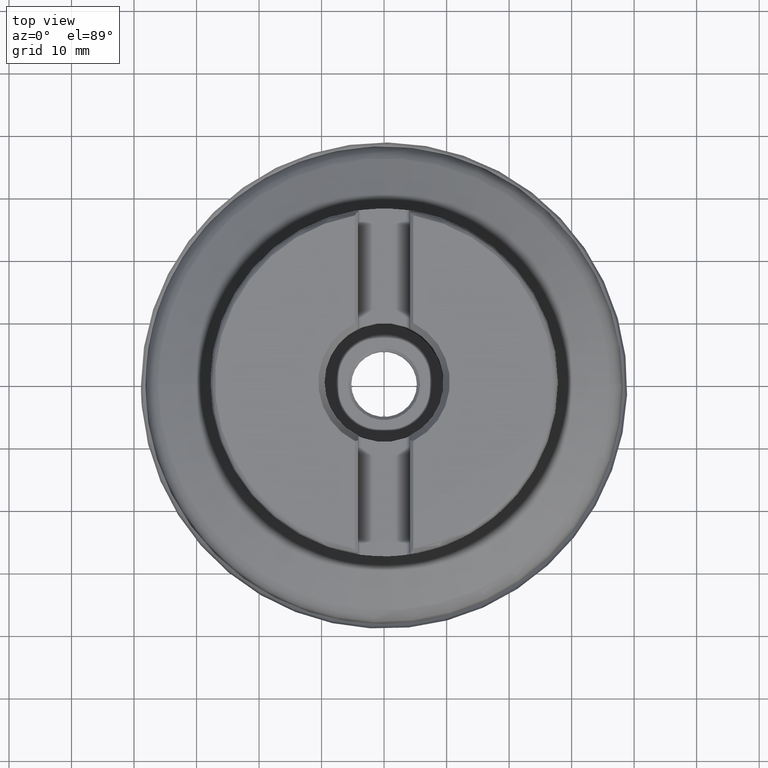
[diagram: clean part render]
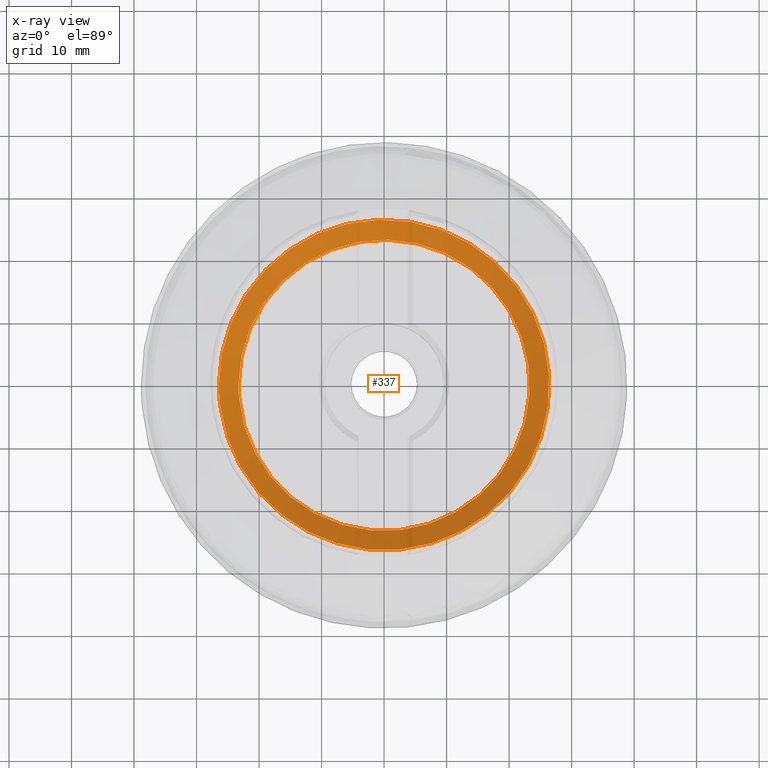
[diagram: x-ray — body ghosted, one internal face saturated and labeled with its STEP entity id]
A machine part, top view, then the same camera in x-ray: the body is ghosted and one INTERNAL B-rep face — a face not visible from any outside direction — is saturated and labeled: STEP entity #337.
In plain terms, the highlighted face is a SurfaceOfRevolution surface.
Its self-contained STEP definition (entity closure, byte-faithful):
#123=SURFACE_OF_REVOLUTION('',#239,#144);
#144=AXIS1_PLACEMENT('',#2129,#1417);
#239=LINE('',#2128,#275);
#275=VECTOR('',#1416,4.41942801874018);
#337=ADVANCED_FACE('',(#433,#434),#123,.F.);
#433=FACE_BOUND('',#545,.T.);
#434=FACE_BOUND('',#546,.T.);
#545=EDGE_LOOP('',(#755));
#546=EDGE_LOOP('',(#756));
#755=ORIENTED_EDGE('',*,*,#954,.T.);
#756=ORIENTED_EDGE('',*,*,#955,.F.);
#849=VERTEX_POINT('',#2123);
#850=VERTEX_POINT('',#2127);
#954=EDGE_CURVE('',#849,#849,#1011,.T.);
#955=EDGE_CURVE('',#850,#850,#1012,.T.);
#1011=CIRCLE('',#1166,26.4264069543379);
#1012=CIRCLE('',#1167,23.3038912924776);
#1166=AXIS2_PLACEMENT_3D('',#2122,#1410,#1411);
#1167=AXIS2_PLACEMENT_3D('',#2126,#1414,#1415);
#1410=DIRECTION('',(0.,0.,-1.));
#1411=DIRECTION('',(-1.,0.,0.));
#1414=DIRECTION('',(0.,0.,-1.));
#1415=DIRECTION('',(-1.,0.,0.));
#1416=DIRECTION('',(-0.0102428377881283,-0.754813592935293,0.655859378368687));
#1417=DIRECTION('',(0.,0.,-1.));
#2122=CARTESIAN_POINT('',(0.,0.,11.7044980559707));
#2123=CARTESIAN_POINT('',(-26.4264069543379,0.,11.7044980559707));
#2126=CARTESIAN_POINT('',(0.,0.,8.80597474285458));
#2127=CARTESIAN_POINT('',(-23.3038912924776,0.,8.80597474285458));
#2128=CARTESIAN_POINT('',(-9.02757609052919,-21.4842784217045,8.80597474285458));
#2129=CARTESIAN_POINT('',(0.,0.,0.));